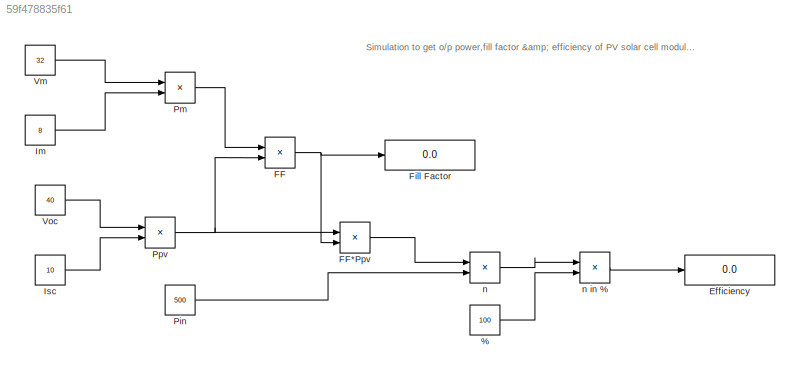
MODEL slx_59f478835f61
KIND model
CONFIG AbsTol = auto
CONFIG EnableMultiTasking = off
CONFIG FixedStep = auto
CONFIG MaxStep = auto
CONFIG MinStep = auto
CONFIG RelTol = 1e-3
CONFIG SampleTimeConstraint = Unconstrained
CONFIG SolverName = VariableStepAuto
CONFIG StartTime = 0.0
CONFIG StopTime = 10.0
BLOCK [Constant] %
  Value = 100
BLOCK [Display] Efficiency
  Decimation = 1
BLOCK [Product] FF
  Inputs = */
BLOCK [Product] FF*Ppv
BLOCK [Display] Fill Factor
  Decimation = 1
BLOCK [Constant] Im
  Value = 8
BLOCK [Constant] Isc
  Value = 10
BLOCK [Constant] Pin
  Value = 500
BLOCK [Product] Pm
BLOCK [Product] Ppv
BLOCK [Constant] Vm
  Value = 32
BLOCK [Constant] Voc
  Value = 40
BLOCK [Product] n
  Inputs = */
BLOCK [Product] n in %
ANNOTATION (root): Simulation to get o/p power,fill factor & efficiency of PV solar cell modules by Viraj Latake
LINE %:1 -> n in %:2
LINE FF*Ppv:1 -> n:1
NET FF:1 -> FF*Ppv:2, Fill Factor:1
LINE Im:1 -> Pm:2
LINE Isc:1 -> Ppv:2
LINE Pin:1 -> n:2
LINE Pm:1 -> FF:1
NET Ppv:1 -> FF*Ppv:1, FF:2
LINE Vm:1 -> Pm:1
LINE Voc:1 -> Ppv:1
LINE n in %:1 -> Efficiency:1
LINE n:1 -> n in %:1
note: NET lines group one-source signal fan-out (src -> all destinations, sorted); 1:1 wires keep LINE
